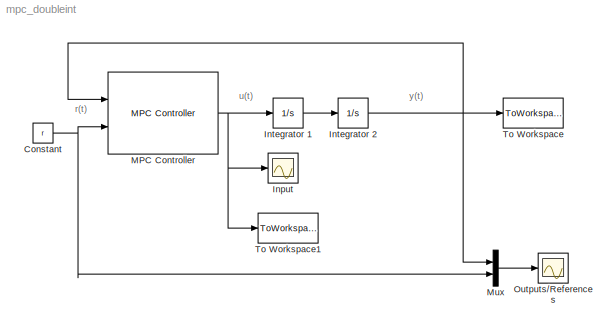
MODEL mpc_doubleint
KIND model
CONFIG AbsTol = auto
CONFIG FixedStep = auto
CONFIG MaxStep = auto
CONFIG MinStep = auto
CONFIG RelTol = 1e-3
CONFIG Solver = ode45
CONFIG SolverMode = SingleTasking
CONFIG StartTime = 0.0
CONFIG StopTime = 5
BLOCK [Constant] Constant
  Value = r
BLOCK [Scope] Input
  DataFormat = Structure
  NumInputPorts = 1
  Ports = [1]
  TimeRange = 6
  YMax = 1
  YMin = -1
  ZoomMode = yonly
BLOCK [Integrator] Integrator 1
  InitialCondition = x01
  LowerSaturationLimit = -Inf
  Ports = [1, 1]
  UpperSaturationLimit = Inf
BLOCK [Integrator] Integrator 2
  InitialCondition = x02
  LowerSaturationLimit = -Inf
  Ports = [1, 1]
  UpperSaturationLimit = Inf
BLOCK [Reference] MPC Controller  REF=mpclib/MPC Controller  (lib defined in mdl_ae329e0e0455)
  Ports = [2, 1]
  SourceBlock = mpclib/MPC Controller
  md_from_ws = off
  md_preview = on
  md_signal_name = []
  mpcobj = mpc_controller
  ref_from_ws = off
  ref_preview = on
  ref_signal_name = []
  x0 = []
BLOCK [Mux] Mux
  DisplayOption = bar
  Inputs = 2
  Ports = [2, 1]
BLOCK [Scope] Outputs//References
  DataFormat = Structure
  NumInputPorts = 1
  Ports = [1]
  TimeRange = 5
  YMax = 1.5
  YMin = 0
BLOCK [ToWorkspace] To Workspace
  MaxDataPoints = Inf
  SampleTime = -1
  SaveFormat = Array
  VariableName = y
BLOCK [ToWorkspace] To Workspace1
  MaxDataPoints = Inf
  SampleTime = -1
  SaveFormat = Array
  VariableName = u
ANNOTATION (root): r(t)
ANNOTATION (root): u(t)
ANNOTATION (root): y(t)
NET Constant:1 -> MPC Controller:2, Mux:2
LINE Integrator 1:1 -> Integrator 2:1
NET Integrator 2:1 -> MPC Controller:1, Mux:1, To Workspace:1
NET MPC Controller:1 -> Input:1, Integrator 1:1, To Workspace1:1
LINE Mux:1 -> Outputs//References:1
note: NET lines group one-source signal fan-out (src -> all destinations, sorted); 1:1 wires keep LINE
